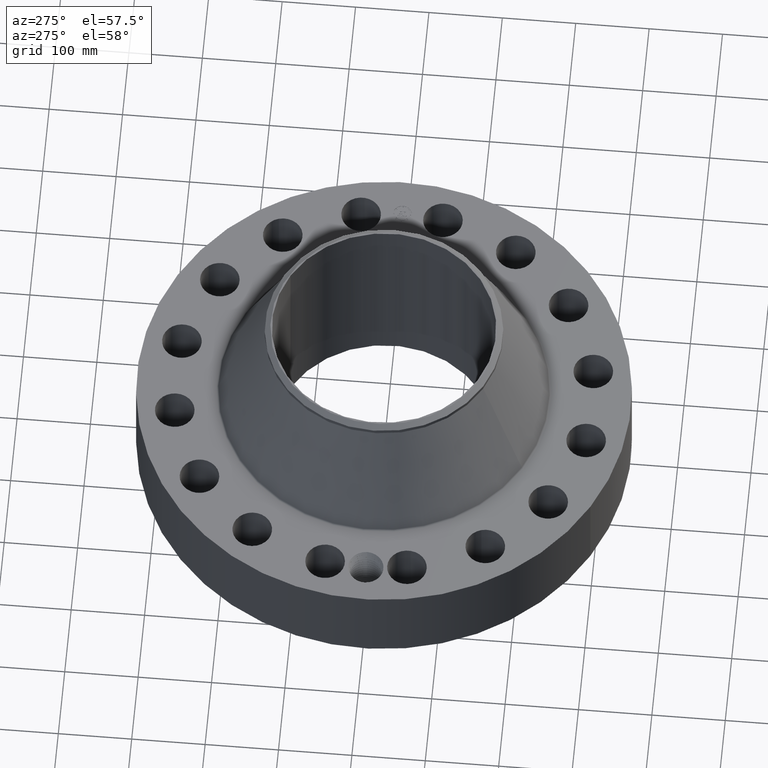
[diagram: clean part render]
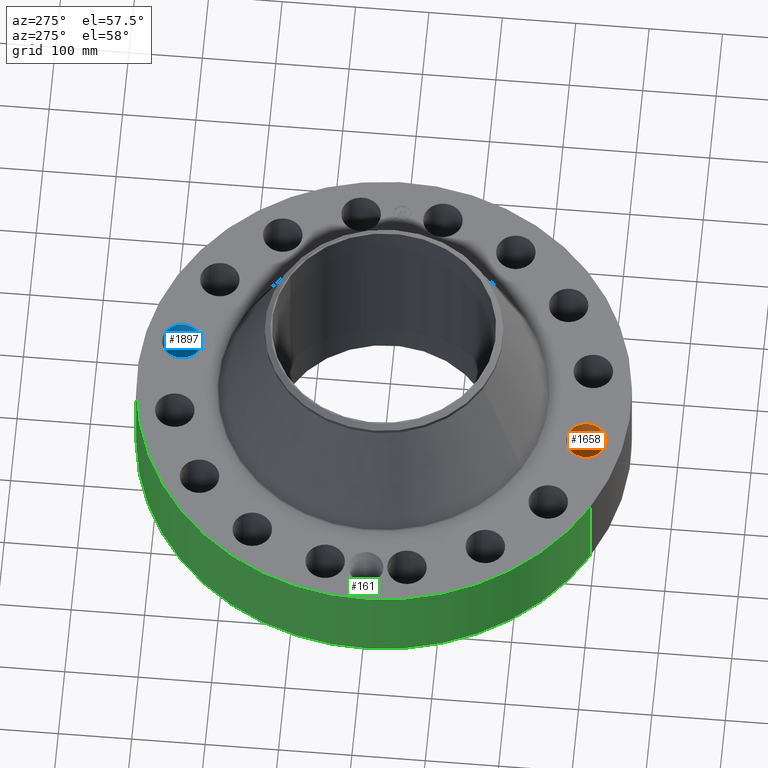
[diagram: same view with three faces highlighted in distinct colors, each labeled with its STEP entity id]
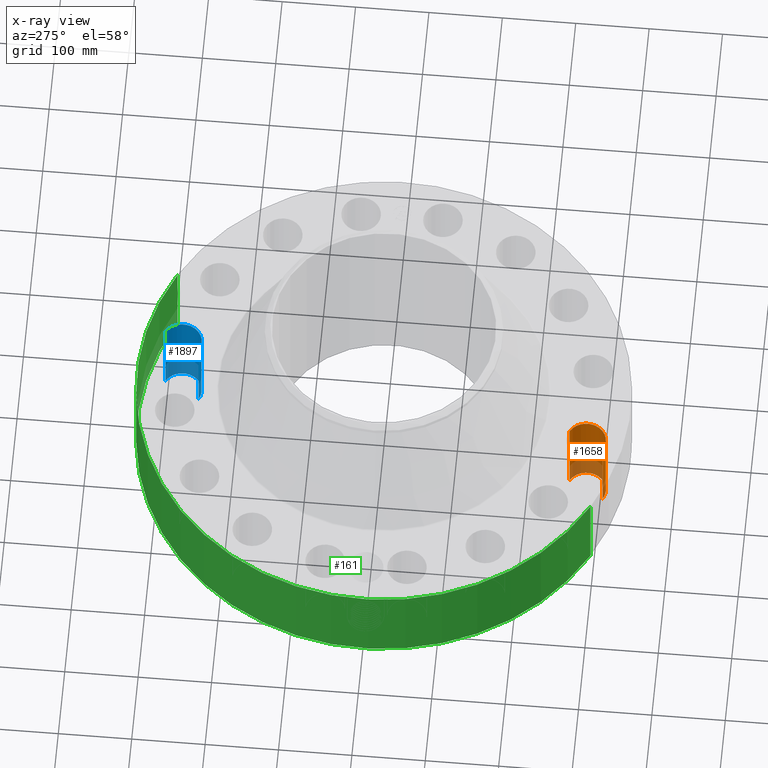
[diagram: x-ray of the same camera — body ghosted, the three highlighted faces saturated]
A machine part, auxiliary view with three faces highlighted in distinct colors.
The next image is the same camera in x-ray (body ghosted, the three faces saturated) — at least one of them is partly hidden behind the body in this view.
Their STEP definitions:

[orange] entity #1658 — the highlighted cylindrical surface (edge-blend (fillet) strip) has radius 26.924 mm, axis along (0, -0, -1).
#334=AXIS2_PLACEMENT_3D('Circle Axis2P3D',#332,#333,$) ;
#816=AXIS2_PLACEMENT_3D('Circle Axis2P3D',#814,#815,$) ;
#1640=AXIS2_PLACEMENT_3D('Cylinder Axis2P3D',#1637,#1638,#1639) ;
#332=CARTESIAN_POINT('Axis2P3D Location',(-2.19476612269,-11.0338344046,0.250000000001)) ;
#336=CARTESIAN_POINT('Vertex',(-1.68657505177,-10.103596889,0.250000000001)) ;
#338=CARTESIAN_POINT('Vertex',(-2.70295719361,-11.9640719202,0.250000000001)) ;
#809=CARTESIAN_POINT('Vertex',(-2.70295719361,-11.9640719202,5.13000000002)) ;
#811=CARTESIAN_POINT('Vertex',(-1.68657505177,-10.103596889,5.13000000002)) ;
#814=CARTESIAN_POINT('Axis2P3D Location',(-2.19476612269,-11.0338344046,5.13000000002)) ;
#1637=CARTESIAN_POINT('Axis2P3D Location',(-2.19476612269,-11.0338344046,5.12606299215)) ;
#1642=CARTESIAN_POINT('Line Origine',(-1.68657505177,-10.103596889,2.69000000001)) ;
#1647=CARTESIAN_POINT('Line Origine',(-2.70295719361,-11.9640719202,2.69000000001)) ;
#333=DIRECTION('Axis2P3D Direction',(0.,0.,-0.0393700787402)) ;
#815=DIRECTION('Axis2P3D Direction',(0.,0.,-0.0393700787402)) ;
#1638=DIRECTION('Axis2P3D Direction',(0.,-0.,-0.0393700787402)) ;
#1639=DIRECTION('Axis2P3D XDirection',(-0.0188750212049,-0.0345504945626,0.)) ;
#1643=DIRECTION('Vector Direction',(0.,0.,-0.0393700787402)) ;
#1648=DIRECTION('Vector Direction',(0.,0.,-0.0393700787402)) ;
#1644=VECTOR('Line Direction',#1643,0.0393700787402) ;
#1649=VECTOR('Line Direction',#1648,0.0393700787402) ;
#1653=ORIENTED_EDGE('',*,*,#1646,.F.) ;
#1654=ORIENTED_EDGE('',*,*,#340,.T.) ;
#1655=ORIENTED_EDGE('',*,*,#1651,.T.) ;
#1656=ORIENTED_EDGE('',*,*,#818,.F.) ;
#1658=ADVANCED_FACE('PartBody',(#1657),#1641,.F.) ;
#335=CIRCLE('generated circle',#334,1.06) ;
#817=CIRCLE('generated circle',#816,1.06) ;
#1641=CYLINDRICAL_SURFACE('generated cylinder',#1640,1.06) ;
#340=EDGE_CURVE('',#337,#339,#335,.T.) ;
#818=EDGE_CURVE('',#812,#810,#817,.T.) ;
#1646=EDGE_CURVE('',#337,#812,#1645,.F.) ;
#1651=EDGE_CURVE('',#339,#810,#1650,.F.) ;
#1652=EDGE_LOOP('',(#1653,#1654,#1655,#1656)) ;
#1657=FACE_OUTER_BOUND('',#1652,.T.) ;
#1645=LINE('Line',#1642,#1644) ;
#1650=LINE('Line',#1647,#1649) ;
#337=VERTEX_POINT('',#336) ;
#339=VERTEX_POINT('',#338) ;
#810=VERTEX_POINT('',#809) ;
#812=VERTEX_POINT('',#811) ;

[blue] entity #1897 — the highlighted cylindrical surface (edge-blend (fillet) strip) has radius 26.924 mm, axis along (0, 0, -1).
#487=AXIS2_PLACEMENT_3D('Circle Axis2P3D',#485,#486,$) ;
#951=AXIS2_PLACEMENT_3D('Circle Axis2P3D',#949,#950,$) ;
#1872=AXIS2_PLACEMENT_3D('Cylinder Axis2P3D',#1869,#1870,#1871) ;
#480=CARTESIAN_POINT('Vertex',(1.68657505177,10.103596889,0.250000000001)) ;
#482=CARTESIAN_POINT('Vertex',(2.70295719361,11.9640719202,0.250000000001)) ;
#485=CARTESIAN_POINT('Axis2P3D Location',(2.19476612269,11.0338344046,0.250000000001)) ;
#949=CARTESIAN_POINT('Axis2P3D Location',(2.19476612269,11.0338344046,5.13000000002)) ;
#953=CARTESIAN_POINT('Vertex',(2.70295719361,11.9640719202,5.13000000002)) ;
#955=CARTESIAN_POINT('Vertex',(1.68657505177,10.103596889,5.13000000002)) ;
#1869=CARTESIAN_POINT('Axis2P3D Location',(2.19476612269,11.0338344046,5.12606299215)) ;
#1874=CARTESIAN_POINT('Line Origine',(1.68657505177,10.103596889,2.69000000001)) ;
#1879=CARTESIAN_POINT('Line Origine',(2.70295719361,11.9640719202,2.69000000001)) ;
#486=DIRECTION('Axis2P3D Direction',(0.,0.,-0.0393700787402)) ;
#950=DIRECTION('Axis2P3D Direction',(0.,0.,-0.0393700787402)) ;
#1870=DIRECTION('Axis2P3D Direction',(0.,0.,-0.0393700787402)) ;
#1871=DIRECTION('Axis2P3D XDirection',(0.0188750212049,0.0345504945626,0.)) ;
#1875=DIRECTION('Vector Direction',(0.,0.,-0.0393700787402)) ;
#1880=DIRECTION('Vector Direction',(0.,0.,-0.0393700787402)) ;
#1876=VECTOR('Line Direction',#1875,0.0393700787402) ;
#1881=VECTOR('Line Direction',#1880,0.0393700787402) ;
#1892=ORIENTED_EDGE('',*,*,#1883,.F.) ;
#1893=ORIENTED_EDGE('',*,*,#489,.T.) ;
#1894=ORIENTED_EDGE('',*,*,#1878,.T.) ;
#1895=ORIENTED_EDGE('',*,*,#957,.F.) ;
#1897=ADVANCED_FACE('PartBody',(#1896),#1873,.F.) ;
#488=CIRCLE('generated circle',#487,1.06) ;
#952=CIRCLE('generated circle',#951,1.06) ;
#1873=CYLINDRICAL_SURFACE('generated cylinder',#1872,1.06) ;
#489=EDGE_CURVE('',#483,#481,#488,.T.) ;
#957=EDGE_CURVE('',#954,#956,#952,.T.) ;
#1878=EDGE_CURVE('',#481,#956,#1877,.F.) ;
#1883=EDGE_CURVE('',#483,#954,#1882,.F.) ;
#1891=EDGE_LOOP('',(#1892,#1893,#1894,#1895)) ;
#1896=FACE_OUTER_BOUND('',#1891,.T.) ;
#1877=LINE('Line',#1874,#1876) ;
#1882=LINE('Line',#1879,#1881) ;
#481=VERTEX_POINT('',#480) ;
#483=VERTEX_POINT('',#482) ;
#954=VERTEX_POINT('',#953) ;
#956=VERTEX_POINT('',#955) ;

[green] entity #161 — the highlighted cylindrical surface (partial cylindrical patch) has radius 336.55 mm, axis along (0, 0, -1).
#38=AXIS2_PLACEMENT_3D('Cylinder Axis2P3D',#35,#36,#37) ;
#42=AXIS2_PLACEMENT_3D('Circle Axis2P3D',#40,#41,$) ;
#58=AXIS2_PLACEMENT_3D('Circle Axis2P3D',#56,#57,$) ;
#35=CARTESIAN_POINT('Axis2P3D Location',(0.,0.,5.81000000002)) ;
#40=CARTESIAN_POINT('Axis2P3D Location',(0.,0.,0.250000000001)) ;
#44=CARTESIAN_POINT('Vertex',(-6.35238838653,-11.6279689451,0.250000000001)) ;
#46=CARTESIAN_POINT('Vertex',(6.35238838653,11.6279689451,0.250000000001)) ;
#49=CARTESIAN_POINT('Line Origine',(-6.35238838653,-11.6279689451,2.69000000001)) ;
#53=CARTESIAN_POINT('Vertex',(-6.35238838653,-11.6279689451,5.13000000002)) ;
#56=CARTESIAN_POINT('Axis2P3D Location',(0.,0.,5.13000000002)) ;
#60=CARTESIAN_POINT('Vertex',(6.35238838653,11.6279689451,5.13000000002)) ;
#63=CARTESIAN_POINT('Line Origine',(6.35238838653,11.6279689451,2.69000000001)) ;
#75=CARTESIAN_POINT('Control Point',(-0.000716182183392,13.2499999807,1.29411846097)) ;
#76=CARTESIAN_POINT('Control Point',(-0.0191502653167,13.2499989843,1.29408121945)) ;
#77=CARTESIAN_POINT('Control Point',(-0.0375810939834,13.2499592085,1.29260034336)) ;
#78=CARTESIAN_POINT('Control Point',(-0.0557843614592,13.2498825695,1.28969405279)) ;
#79=CARTESIAN_POINT('Vertex',(-0.000715776774679,13.2499999807,1.29411851031)) ;
#81=CARTESIAN_POINT('Vertex',(-0.0557753377726,13.2498828606,1.2896955122)) ;
#85=CARTESIAN_POINT('Control Point',(-0.0557752409463,13.2498826079,1.2896949601)) ;
#86=CARTESIAN_POINT('Control Point',(-0.0960317888687,13.2497131484,1.28519648012)) ;
#87=CARTESIAN_POINT('Control Point',(-0.135627700013,13.2493559782,1.27336881106)) ;
#88=CARTESIAN_POINT('Control Point',(-0.172076085037,13.2488825877,1.25501398008)) ;
#89=CARTESIAN_POINT('Vertex',(-0.172076085037,13.2488825877,1.25501398008)) ;
#93=CARTESIAN_POINT('Control Point',(-0.0308574974485,13.2499640685,0.531177487723)) ;
#94=CARTESIAN_POINT('Control Point',(-0.100043950933,13.249802942,0.53994175403)) ;
#95=CARTESIAN_POINT('Control Point',(-0.166894350058,13.2491956705,0.564145361282)) ;
#96=CARTESIAN_POINT('Control Point',(-0.226589153171,13.2482117099,0.602961853245)) ;
#97=CARTESIAN_POINT('Control Point',(-0.299033939253,13.2466912427,0.677002948527)) ;
#98=CARTESIAN_POINT('Control Point',(-0.343806497706,13.2455487155,0.767252961301)) ;
#99=CARTESIAN_POINT('Control Point',(-0.355258005271,13.2452407762,0.797964520627)) ;
#100=CARTESIAN_POINT('Control Point',(-0.373767359894,13.2447311356,0.869263562129)) ;
#101=CARTESIAN_POINT('Control Point',(-0.375440893886,13.2446781575,0.942604837927)) ;
#102=CARTESIAN_POINT('Control Point',(-0.371062917452,13.244805279,0.983230149786)) ;
#103=CARTESIAN_POINT('Control Point',(-0.348620721286,13.2454396498,1.07565637272)) ;
#104=CARTESIAN_POINT('Control Point',(-0.299242591336,13.2466708422,1.15702689289)) ;
#105=CARTESIAN_POINT('Control Point',(-0.262809100398,13.247490619,1.1979521355)) ;
#106=CARTESIAN_POINT('Control Point',(-0.219645572168,13.2482647566,1.23105873449)) ;
#107=CARTESIAN_POINT('Control Point',(-0.172076085037,13.2488825877,1.25501398008)) ;
#108=CARTESIAN_POINT('Vertex',(-0.0308574974484,13.2499640685,0.531177487723)) ;
#112=CARTESIAN_POINT('Control Point',(-0.0308574974484,13.2499640685,0.531177487723)) ;
#113=CARTESIAN_POINT('Control Point',(-0.0205665787994,13.2499880347,0.530872867649)) ;
#114=CARTESIAN_POINT('Control Point',(-0.010268648996,13.2500000022,0.530938766678)) ;
#115=CARTESIAN_POINT('Control Point',(2.7287835268E-006,13.2500000001,0.531374667805)) ;
#116=CARTESIAN_POINT('Vertex',(2.72878354194E-006,13.2500000001,0.531374667805)) ;
#120=CARTESIAN_POINT('Control Point',(0.192757893617,13.2485978275,0.587169898879)) ;
#121=CARTESIAN_POINT('Control Point',(0.149056428847,13.2492336535,0.561897250202)) ;
#122=CARTESIAN_POINT('Control Point',(0.101125994615,13.2497395629,0.543730098776)) ;
#123=CARTESIAN_POINT('Control Point',(0.0508093392044,13.2499999896,0.533530819168)) ;
#124=CARTESIAN_POINT('Control Point',(2.72878355034E-006,13.2500000001,0.531374667805)) ;
#125=CARTESIAN_POINT('Vertex',(0.192757893617,13.2485978275,0.587169898879)) ;
#129=CARTESIAN_POINT('Control Point',(0.192757893617,13.2485978275,0.587169898879)) ;
#130=CARTESIAN_POINT('Control Point',(0.249681211158,13.2477696328,0.620088774015)) ;
#131=CARTESIAN_POINT('Control Point',(0.29989774591,13.2467332348,0.6643079815)) ;
#132=CARTESIAN_POINT('Control Point',(0.34027260236,13.2456768452,0.718329959234)) ;
#133=CARTESIAN_POINT('Control Point',(0.384786930332,13.2444230771,0.816408681378)) ;
#134=CARTESIAN_POINT('Control Point',(0.393565265395,13.2441521437,0.921704502702)) ;
#135=CARTESIAN_POINT('Control Point',(0.391517982915,13.2442146621,0.961814118145)) ;
#136=CARTESIAN_POINT('Control Point',(0.377486119222,13.2446358495,1.03665946441)) ;
#137=CARTESIAN_POINT('Control Point',(0.345492049721,13.2455094413,1.10505084838)) ;
#138=CARTESIAN_POINT('Control Point',(0.326475931383,13.246002738,1.1354698807)) ;
#139=CARTESIAN_POINT('Control Point',(0.264616208022,13.2474708185,1.21225153127)) ;
#140=CARTESIAN_POINT('Control Point',(0.181234582852,13.2489343562,1.26546431625)) ;
#141=CARTESIAN_POINT('Control Point',(0.122123736385,13.2496537486,1.2876337655)) ;
#142=CARTESIAN_POINT('Control Point',(0.0605777054902,13.2500001183,1.29712427101)) ;
#143=CARTESIAN_POINT('Control Point',(-2.58579355776E-005,13.25,1.2941529843)) ;
#144=CARTESIAN_POINT('Vertex',(-2.58579355466E-005,13.25,1.2941529843)) ;
#148=CARTESIAN_POINT('Control Point',(-0.000715776764903,13.2499999807,1.2941185103)) ;
#149=CARTESIAN_POINT('Control Point',(-0.000370841803535,13.2499999994,1.29413607037)) ;
#150=CARTESIAN_POINT('Control Point',(-2.58579407039E-005,13.25,1.2941529843)) ;
#36=DIRECTION('Axis2P3D Direction',(0.,0.,-0.0393700787402)) ;
#37=DIRECTION('Axis2P3D XDirection',(0.0188750212049,0.0345504945626,0.)) ;
#41=DIRECTION('Axis2P3D Direction',(0.,0.,-0.0393700787402)) ;
#50=DIRECTION('Vector Direction',(0.,0.,-0.0393700787402)) ;
#57=DIRECTION('Axis2P3D Direction',(0.,0.,-0.0393700787402)) ;
#64=DIRECTION('Vector Direction',(0.,0.,-0.0393700787402)) ;
#51=VECTOR('Line Direction',#50,0.0393700787402) ;
#65=VECTOR('Line Direction',#64,0.0393700787402) ;
#69=ORIENTED_EDGE('',*,*,#48,.F.) ;
#70=ORIENTED_EDGE('',*,*,#55,.T.) ;
#71=ORIENTED_EDGE('',*,*,#62,.T.) ;
#72=ORIENTED_EDGE('',*,*,#67,.F.) ;
#153=ORIENTED_EDGE('',*,*,#83,.T.) ;
#154=ORIENTED_EDGE('',*,*,#91,.T.) ;
#155=ORIENTED_EDGE('',*,*,#110,.F.) ;
#156=ORIENTED_EDGE('',*,*,#118,.T.) ;
#157=ORIENTED_EDGE('',*,*,#127,.F.) ;
#158=ORIENTED_EDGE('',*,*,#146,.T.) ;
#159=ORIENTED_EDGE('',*,*,#151,.F.) ;
#160=FACE_BOUND('',#152,.T.) ;
#161=ADVANCED_FACE('PartBody',(#73,#160),#39,.T.) ;
#74=B_SPLINE_CURVE_WITH_KNOTS('',3,(#75,#76,#77,#78),.UNSPECIFIED.,.F.,.U.,(4,4),(34.6164759047,36.6615629456),.UNSPECIFIED.) ;
#84=B_SPLINE_CURVE_WITH_KNOTS('',3,(#85,#86,#87,#88),.UNSPECIFIED.,.F.,.U.,(4,4),(0.,4.5515262139),.UNSPECIFIED.) ;
#92=B_SPLINE_CURVE_WITH_KNOTS('',5,(#93,#94,#95,#96,#97,#98,#99,#100,#101,#102,#103,#104,#105,#106,#107),.UNSPECIFIED.,.F.,.U.,(6,3,3,3,6),(0.,12.1199799921,17.9789266779,25.356771439,35.2572454647),.UNSPECIFIED.) ;
#111=B_SPLINE_CURVE_WITH_KNOTS('',3,(#112,#113,#114,#115),.UNSPECIFIED.,.F.,.U.,(4,4),(0.,1.0734791093),.UNSPECIFIED.) ;
#119=B_SPLINE_CURVE_WITH_KNOTS('',4,(#120,#121,#122,#123,#124),.UNSPECIFIED.,.F.,.U.,(5,5),(0.,7.07984666854),.UNSPECIFIED.) ;
#128=B_SPLINE_CURVE_WITH_KNOTS('',5,(#129,#130,#131,#132,#133,#134,#135,#136,#137,#138,#139,#140,#141,#142,#143),.UNSPECIFIED.,.F.,.U.,(6,3,3,3,6),(0.,11.5273128213,18.5849259189,24.9929543115,36.3210179417),.UNSPECIFIED.) ;
#147=B_SPLINE_CURVE_WITH_KNOTS('',2,(#148,#149,#150),.UNSPECIFIED.,.F.,.U.,(3,3),(1.02660278465,1.05239664294),.UNSPECIFIED.) ;
#43=CIRCLE('generated circle',#42,13.2500000001) ;
#59=CIRCLE('generated circle',#58,13.2500000001) ;
#39=CYLINDRICAL_SURFACE('generated cylinder',#38,13.2500000001) ;
#48=EDGE_CURVE('',#45,#47,#43,.T.) ;
#55=EDGE_CURVE('',#45,#54,#52,.F.) ;
#62=EDGE_CURVE('',#54,#61,#59,.T.) ;
#67=EDGE_CURVE('',#47,#61,#66,.F.) ;
#83=EDGE_CURVE('',#80,#82,#74,.T.) ;
#91=EDGE_CURVE('',#82,#90,#84,.T.) ;
#110=EDGE_CURVE('',#109,#90,#92,.T.) ;
#118=EDGE_CURVE('',#109,#117,#111,.T.) ;
#127=EDGE_CURVE('',#126,#117,#119,.T.) ;
#146=EDGE_CURVE('',#126,#145,#128,.T.) ;
#151=EDGE_CURVE('',#80,#145,#147,.T.) ;
#68=EDGE_LOOP('',(#69,#70,#71,#72)) ;
#152=EDGE_LOOP('',(#153,#154,#155,#156,#157,#158,#159)) ;
#73=FACE_OUTER_BOUND('',#68,.T.) ;
#52=LINE('Line',#49,#51) ;
#66=LINE('Line',#63,#65) ;
#45=VERTEX_POINT('',#44) ;
#47=VERTEX_POINT('',#46) ;
#54=VERTEX_POINT('',#53) ;
#61=VERTEX_POINT('',#60) ;
#80=VERTEX_POINT('',#79) ;
#82=VERTEX_POINT('',#81) ;
#90=VERTEX_POINT('',#89) ;
#109=VERTEX_POINT('',#108) ;
#117=VERTEX_POINT('',#116) ;
#126=VERTEX_POINT('',#125) ;
#145=VERTEX_POINT('',#144) ;